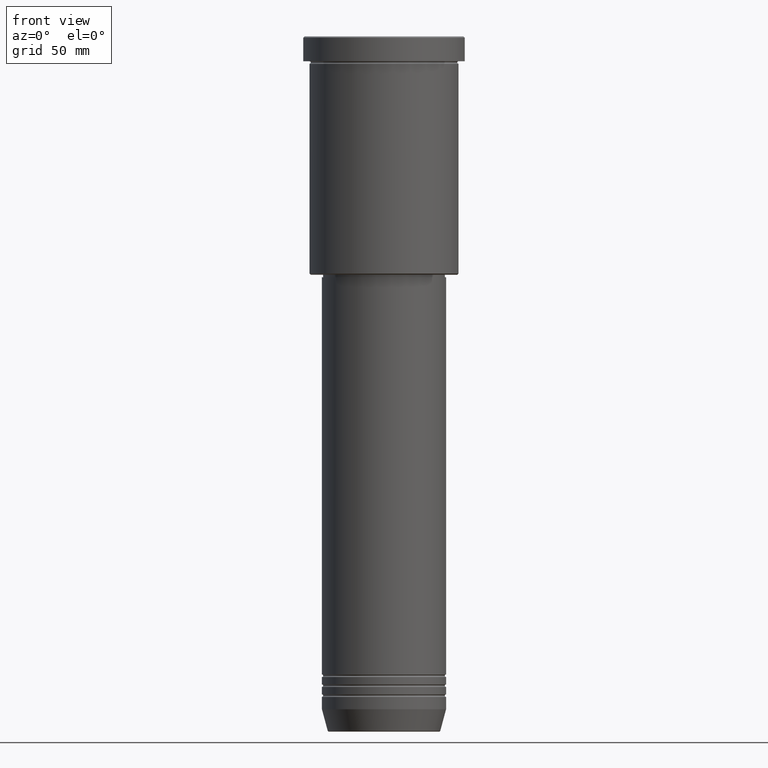
[diagram: clean part render]
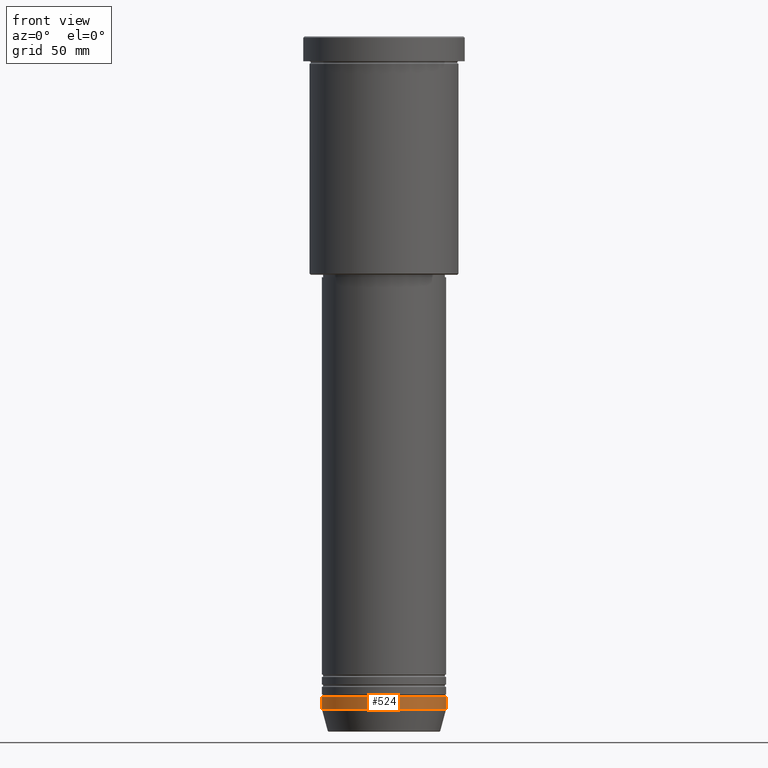
[diagram: same view with one face highlighted and labeled with its STEP entity id]
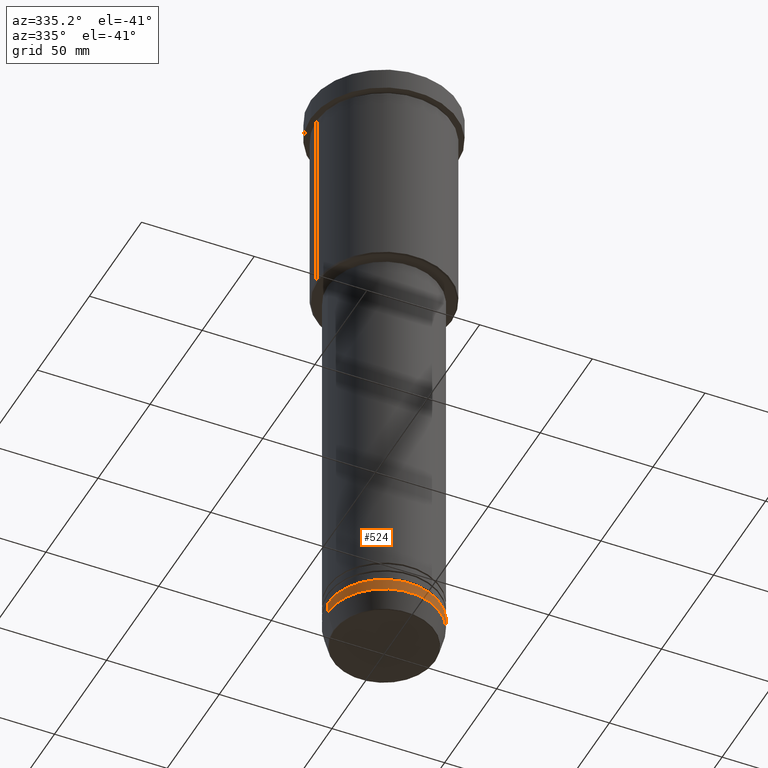
[diagram: same view with one face highlighted and labeled with its STEP entity id]
A machine part, front view. The second image highlights one B-rep face of the part: STEP entity #524.
A second angle (auxiliary view) of the same face is appended — the face is thin or edge-on in the first view.
In plain terms, the highlighted cylindrical surface (partial cylindrical patch) has radius 25 mm, axis along (-0, -0, 1).
Its self-contained STEP definition (entity closure, byte-faithful):
#16 = ORIENTED_EDGE ( 'NONE', *, *, #1061, .T. ) ;
#38 = VERTEX_POINT ( 'NONE', #647 ) ;
#53 = DIRECTION ( 'NONE',  ( -0.000000000000000000, -0.000000000000000000, 1.000000000000000000 ) ) ;
#62 = DIRECTION ( 'NONE',  ( -0.000000000000000000, -0.000000000000000000, 1.000000000000000000 ) ) ;
#123 = VECTOR ( 'NONE', #188, 1000.000000000000000 ) ;
#188 = DIRECTION ( 'NONE',  ( -0.000000000000000000, -0.000000000000000000, 1.000000000000000000 ) ) ;
#225 = ORIENTED_EDGE ( 'NONE', *, *, #243, .F. ) ;
#240 = CARTESIAN_POINT ( 'NONE',  ( -25.00000000000000000, 3.061616997868383043E-15, 0.000000000000000000 ) ) ;
#243 = EDGE_CURVE ( 'NONE', #964, #906, #356, .T. ) ;
#335 = AXIS2_PLACEMENT_3D ( 'NONE', #346, #725, #1078 ) ;
#345 = LINE ( 'NONE', #240, #770 ) ;
#346 = CARTESIAN_POINT ( 'NONE',  ( 0.000000000000000000, 0.000000000000000000, -266.0000000000000000 ) ) ;
#356 = CIRCLE ( 'NONE', #335, 25.00000000000000000 ) ;
#384 = LINE ( 'NONE', #1011, #123 ) ;
#506 = CARTESIAN_POINT ( 'NONE',  ( 25.00000000000000000, 0.000000000000000000, -271.0000000000000000 ) ) ;
#512 = CARTESIAN_POINT ( 'NONE',  ( 0.000000000000000000, 0.000000000000000000, -271.0000000000000000 ) ) ;
#523 = ORIENTED_EDGE ( 'NONE', *, *, #1008, .F. ) ;
#524 = ADVANCED_FACE ( 'NONE', ( #943 ), #884, .T. ) ;
#542 = CARTESIAN_POINT ( 'NONE',  ( 25.00000000000000000, 0.000000000000000000, -266.0000000000000000 ) ) ;
#554 = VERTEX_POINT ( 'NONE', #506 ) ;
#599 = ORIENTED_EDGE ( 'NONE', *, *, #852, .T. ) ;
#647 = CARTESIAN_POINT ( 'NONE',  ( -25.00000000000000000, 3.061616997868383043E-15, -271.0000000000000000 ) ) ;
#664 = CARTESIAN_POINT ( 'NONE',  ( -25.00000000000000000, 3.061616997868383043E-15, -266.0000000000000000 ) ) ;
#696 = DIRECTION ( 'NONE',  ( -0.000000000000000000, -0.000000000000000000, 1.000000000000000000 ) ) ;
#703 = DIRECTION ( 'NONE',  ( 1.000000000000000000, 0.000000000000000000, 0.000000000000000000 ) ) ;
#725 = DIRECTION ( 'NONE',  ( -0.000000000000000000, -0.000000000000000000, 1.000000000000000000 ) ) ;
#770 = VECTOR ( 'NONE', #62, 1000.000000000000000 ) ;
#816 = AXIS2_PLACEMENT_3D ( 'NONE', #512, #53, #871 ) ;
#852 = EDGE_CURVE ( 'NONE', #554, #906, #384, .T. ) ;
#864 = CARTESIAN_POINT ( 'NONE',  ( 0.000000000000000000, 0.000000000000000000, 0.000000000000000000 ) ) ;
#871 = DIRECTION ( 'NONE',  ( 1.000000000000000000, 0.000000000000000000, 0.000000000000000000 ) ) ;
#884 = CYLINDRICAL_SURFACE ( 'NONE', #991, 25.00000000000000000 ) ;
#906 = VERTEX_POINT ( 'NONE', #542 ) ;
#943 = FACE_OUTER_BOUND ( 'NONE', #981, .T. ) ;
#964 = VERTEX_POINT ( 'NONE', #664 ) ;
#981 = EDGE_LOOP ( 'NONE', ( #523, #16, #599, #225 ) ) ;
#991 = AXIS2_PLACEMENT_3D ( 'NONE', #864, #696, #703 ) ;
#1008 = EDGE_CURVE ( 'NONE', #38, #964, #345, .T. ) ;
#1011 = CARTESIAN_POINT ( 'NONE',  ( 25.00000000000000000, 0.000000000000000000, 0.000000000000000000 ) ) ;
#1061 = EDGE_CURVE ( 'NONE', #38, #554, #1174, .T. ) ;
#1078 = DIRECTION ( 'NONE',  ( 1.000000000000000000, 0.000000000000000000, 0.000000000000000000 ) ) ;
#1174 = CIRCLE ( 'NONE', #816, 25.00000000000000000 ) ;